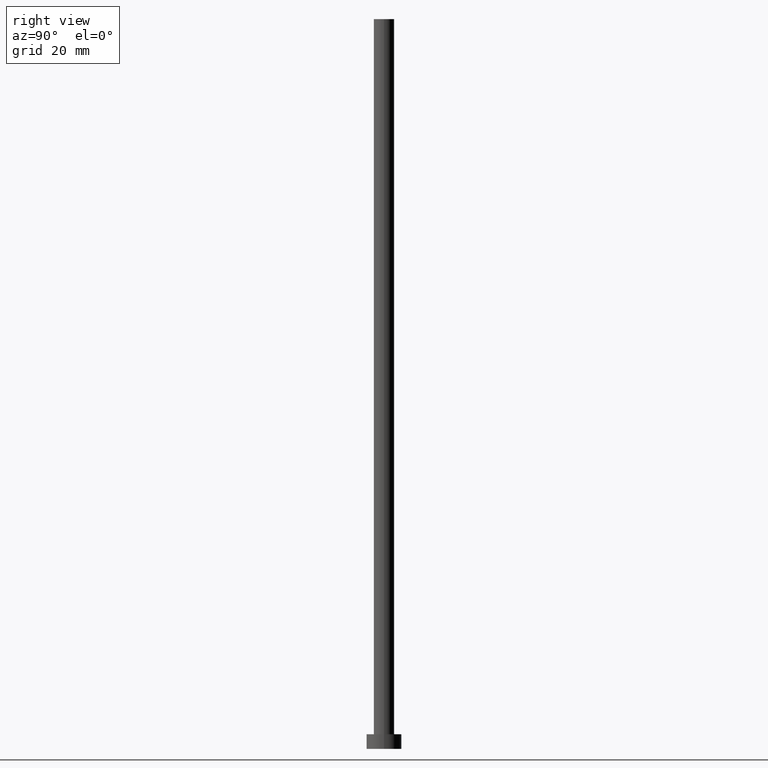
[diagram: clean part render]
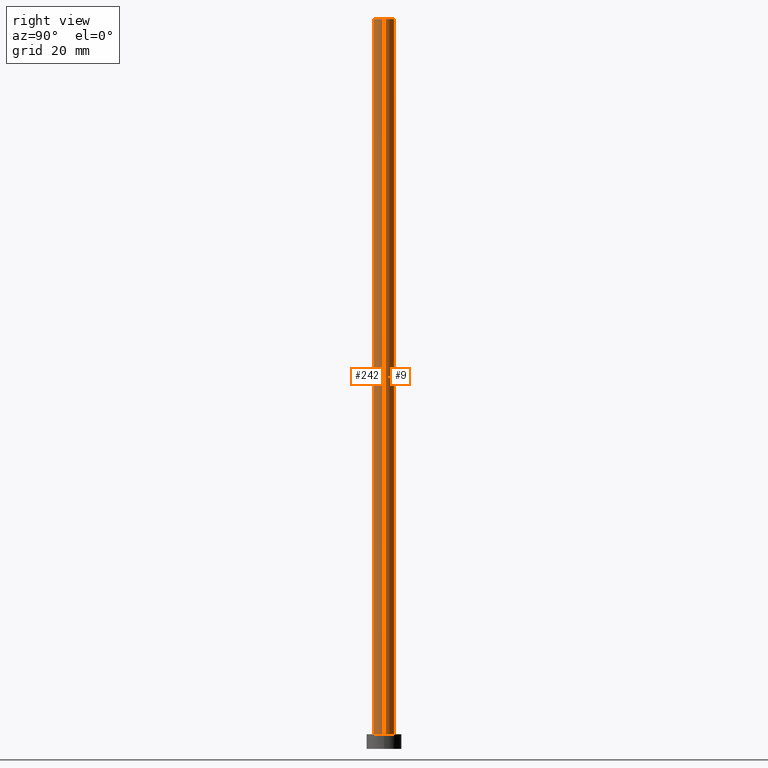
[diagram: same view with one multi-face feature highlighted, each face labeled with its STEP entity id]
A machine part, right view. The highlighted faces form ONE feature: a constant-radius fillet chain: 2 tangent blend faces with common blend radius 3.5 mm. The faces share edges in the B-rep.
Their STEP definitions:
[1] entity #242 (Cylinder):
#8 = ORIENTED_EDGE ( 'NONE', *, *, #163, .T. ) ;
#11 = CARTESIAN_POINT ( 'NONE',  ( 3.500000000000000000, 4.286263797015736595E-16, 250.0000000000000000 ) ) ;
#12 = DIRECTION ( 'NONE',  ( -0.000000000000000000, -0.000000000000000000, -1.000000000000000000 ) ) ;
#19 = ORIENTED_EDGE ( 'NONE', *, *, #180, .F. ) ;
#23 = ORIENTED_EDGE ( 'NONE', *, *, #139, .T. ) ;
#25 = VERTEX_POINT ( 'NONE', #236 ) ;
#31 = DIRECTION ( 'NONE',  ( 0.000000000000000000, 0.000000000000000000, 1.000000000000000000 ) ) ;
#32 = DIRECTION ( 'NONE',  ( -0.000000000000000000, -0.000000000000000000, -1.000000000000000000 ) ) ;
#38 = CIRCLE ( 'NONE', #45, 3.500000000000000000 ) ;
#45 = AXIS2_PLACEMENT_3D ( 'NONE', #127, #210, #181 ) ;
#55 = LINE ( 'NONE', #142, #109 ) ;
#57 = DIRECTION ( 'NONE',  ( -0.000000000000000000, -0.000000000000000000, -1.000000000000000000 ) ) ;
#68 = VERTEX_POINT ( 'NONE', #116 ) ;
#72 = CYLINDRICAL_SURFACE ( 'NONE', #90, 3.500000000000000000 ) ;
#73 = CARTESIAN_POINT ( 'NONE',  ( 3.500000000000000000, 4.286263797015736595E-16, 250.0000000000000000 ) ) ;
#74 = VERTEX_POINT ( 'NONE', #11 ) ;
#76 = DIRECTION ( 'NONE',  ( 1.000000000000000000, 0.000000000000000000, 0.000000000000000000 ) ) ;
#77 = CARTESIAN_POINT ( 'NONE',  ( 0.000000000000000000, 0.000000000000000000, 5.000000000000000000 ) ) ;
#90 = AXIS2_PLACEMENT_3D ( 'NONE', #189, #57, #140 ) ;
#105 = ORIENTED_EDGE ( 'NONE', *, *, #198, .F. ) ;
#109 = VECTOR ( 'NONE', #12, 1000.000000000000000 ) ;
#116 = CARTESIAN_POINT ( 'NONE',  ( -3.500000000000000000, 0.000000000000000000, 5.000000000000000000 ) ) ;
#127 = CARTESIAN_POINT ( 'NONE',  ( 0.000000000000000000, 0.000000000000000000, 250.0000000000000000 ) ) ;
#139 = EDGE_CURVE ( 'NONE', #182, #68, #55, .T. ) ;
#140 = DIRECTION ( 'NONE',  ( -1.000000000000000000, 0.000000000000000000, 0.000000000000000000 ) ) ;
#142 = CARTESIAN_POINT ( 'NONE',  ( -3.500000000000000000, 0.000000000000000000, 250.0000000000000000 ) ) ;
#158 = LINE ( 'NONE', #73, #186 ) ;
#163 = EDGE_CURVE ( 'NONE', #68, #25, #191, .T. ) ;
#180 = EDGE_CURVE ( 'NONE', #182, #74, #38, .T. ) ;
#181 = DIRECTION ( 'NONE',  ( 1.000000000000000000, 0.000000000000000000, 0.000000000000000000 ) ) ;
#182 = VERTEX_POINT ( 'NONE', #245 ) ;
#186 = VECTOR ( 'NONE', #32, 1000.000000000000000 ) ;
#189 = CARTESIAN_POINT ( 'NONE',  ( 0.000000000000000000, 0.000000000000000000, 250.0000000000000000 ) ) ;
#191 = CIRCLE ( 'NONE', #194, 3.500000000000000000 ) ;
#194 = AXIS2_PLACEMENT_3D ( 'NONE', #77, #31, #76 ) ;
#198 = EDGE_CURVE ( 'NONE', #74, #25, #158, .T. ) ;
#210 = DIRECTION ( 'NONE',  ( 0.000000000000000000, 0.000000000000000000, 1.000000000000000000 ) ) ;
#211 = FACE_OUTER_BOUND ( 'NONE', #224, .T. ) ;
#224 = EDGE_LOOP ( 'NONE', ( #105, #19, #23, #8 ) ) ;
#236 = CARTESIAN_POINT ( 'NONE',  ( 3.500000000000000000, 4.286263797015736595E-16, 5.000000000000000000 ) ) ;
#242 = ADVANCED_FACE ( 'NONE', ( #211 ), #72, .T. ) ;
#245 = CARTESIAN_POINT ( 'NONE',  ( -3.500000000000000000, 0.000000000000000000, 250.0000000000000000 ) ) ;
[2] entity #9 (Cylinder):
#5 = EDGE_CURVE ( 'NONE', #25, #68, #253, .T. ) ;
#9 = ADVANCED_FACE ( 'NONE', ( #155 ), #239, .T. ) ;
#11 = CARTESIAN_POINT ( 'NONE',  ( 3.500000000000000000, 4.286263797015736595E-16, 250.0000000000000000 ) ) ;
#12 = DIRECTION ( 'NONE',  ( -0.000000000000000000, -0.000000000000000000, -1.000000000000000000 ) ) ;
#21 = ORIENTED_EDGE ( 'NONE', *, *, #198, .T. ) ;
#25 = VERTEX_POINT ( 'NONE', #236 ) ;
#32 = DIRECTION ( 'NONE',  ( -0.000000000000000000, -0.000000000000000000, -1.000000000000000000 ) ) ;
#33 = AXIS2_PLACEMENT_3D ( 'NONE', #208, #185, #179 ) ;
#42 = DIRECTION ( 'NONE',  ( -1.000000000000000000, 0.000000000000000000, 0.000000000000000000 ) ) ;
#51 = DIRECTION ( 'NONE',  ( 1.000000000000000000, 0.000000000000000000, 0.000000000000000000 ) ) ;
#53 = ORIENTED_EDGE ( 'NONE', *, *, #5, .T. ) ;
#55 = LINE ( 'NONE', #142, #109 ) ;
#68 = VERTEX_POINT ( 'NONE', #116 ) ;
#73 = CARTESIAN_POINT ( 'NONE',  ( 3.500000000000000000, 4.286263797015736595E-16, 250.0000000000000000 ) ) ;
#74 = VERTEX_POINT ( 'NONE', #11 ) ;
#80 = DIRECTION ( 'NONE',  ( -0.000000000000000000, -0.000000000000000000, -1.000000000000000000 ) ) ;
#88 = EDGE_LOOP ( 'NONE', ( #134, #21, #53, #207 ) ) ;
#95 = CARTESIAN_POINT ( 'NONE',  ( 0.000000000000000000, 0.000000000000000000, 250.0000000000000000 ) ) ;
#96 = EDGE_CURVE ( 'NONE', #74, #182, #176, .T. ) ;
#98 = CARTESIAN_POINT ( 'NONE',  ( 0.000000000000000000, 0.000000000000000000, 250.0000000000000000 ) ) ;
#109 = VECTOR ( 'NONE', #12, 1000.000000000000000 ) ;
#116 = CARTESIAN_POINT ( 'NONE',  ( -3.500000000000000000, 0.000000000000000000, 5.000000000000000000 ) ) ;
#134 = ORIENTED_EDGE ( 'NONE', *, *, #96, .F. ) ;
#139 = EDGE_CURVE ( 'NONE', #182, #68, #55, .T. ) ;
#142 = CARTESIAN_POINT ( 'NONE',  ( -3.500000000000000000, 0.000000000000000000, 250.0000000000000000 ) ) ;
#155 = FACE_OUTER_BOUND ( 'NONE', #88, .T. ) ;
#158 = LINE ( 'NONE', #73, #186 ) ;
#176 = CIRCLE ( 'NONE', #202, 3.500000000000000000 ) ;
#179 = DIRECTION ( 'NONE',  ( 1.000000000000000000, 0.000000000000000000, 0.000000000000000000 ) ) ;
#182 = VERTEX_POINT ( 'NONE', #245 ) ;
#185 = DIRECTION ( 'NONE',  ( 0.000000000000000000, 0.000000000000000000, 1.000000000000000000 ) ) ;
#186 = VECTOR ( 'NONE', #32, 1000.000000000000000 ) ;
#198 = EDGE_CURVE ( 'NONE', #74, #25, #158, .T. ) ;
#202 = AXIS2_PLACEMENT_3D ( 'NONE', #95, #240, #51 ) ;
#207 = ORIENTED_EDGE ( 'NONE', *, *, #139, .F. ) ;
#208 = CARTESIAN_POINT ( 'NONE',  ( 0.000000000000000000, 0.000000000000000000, 5.000000000000000000 ) ) ;
#236 = CARTESIAN_POINT ( 'NONE',  ( 3.500000000000000000, 4.286263797015736595E-16, 5.000000000000000000 ) ) ;
#239 = CYLINDRICAL_SURFACE ( 'NONE', #246, 3.500000000000000000 ) ;
#240 = DIRECTION ( 'NONE',  ( 0.000000000000000000, 0.000000000000000000, 1.000000000000000000 ) ) ;
#245 = CARTESIAN_POINT ( 'NONE',  ( -3.500000000000000000, 0.000000000000000000, 250.0000000000000000 ) ) ;
#246 = AXIS2_PLACEMENT_3D ( 'NONE', #98, #80, #42 ) ;
#253 = CIRCLE ( 'NONE', #33, 3.500000000000000000 ) ;